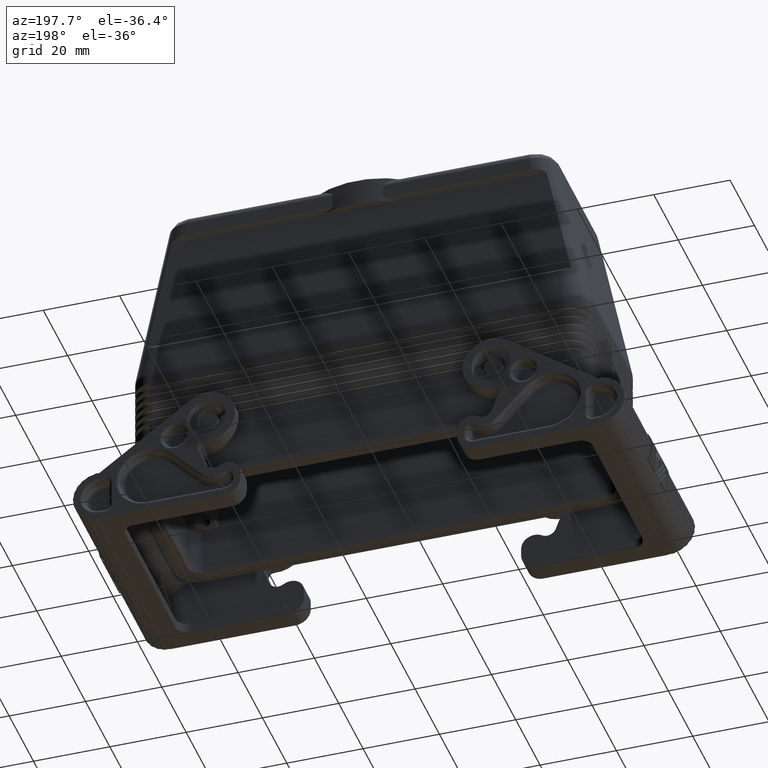
[diagram: clean part render]
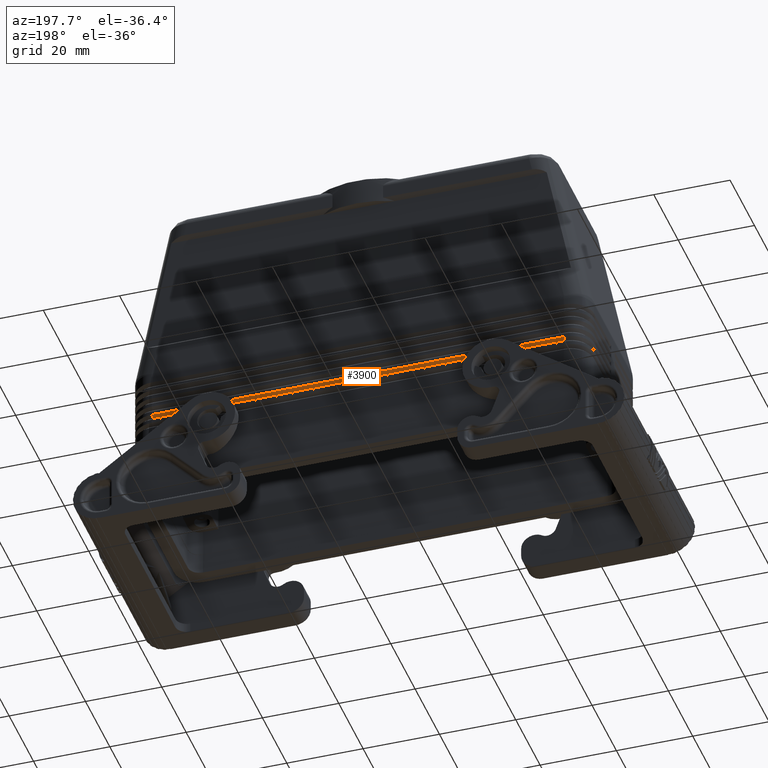
[diagram: same view with one face highlighted and labeled with its STEP entity id]
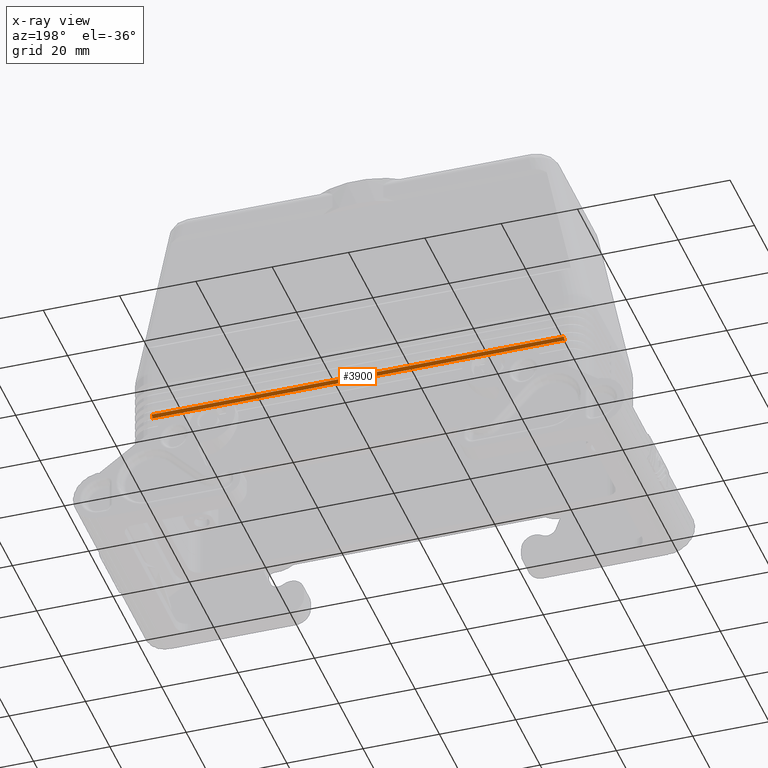
[diagram: x-ray of the same camera — body ghosted, the highlighted face saturated]
A machine part, auxiliary view. The second image highlights one B-rep face of the part: STEP entity #3900.
The next image is the same camera in x-ray: the body ghosted, the highlighted face saturated — about 0% of this face is hidden behind the body in this view.
In plain terms, the highlighted planar face has unit normal (0, 0.7071, -0.7071).
Its self-contained STEP definition (entity closure, byte-faithful):
#120=CARTESIAN_POINT('',(54.,20.8,20.55));
#130=VERTEX_POINT('',#120);
#160=CARTESIAN_POINT('',(-54.,20.8,20.55));
#170=DIRECTION('',(1.,0.,0.));
#180=VECTOR('',#170,108.);
#190=LINE('',#160,#180);
#200=CARTESIAN_POINT('',(-54.,20.8,20.55));
#210=VERTEX_POINT('',#200);
#220=EDGE_CURVE('',#210,#130,#190,.T.);
#3460=CARTESIAN_POINT('',(54.,21.5,21.25));
#3470=VERTEX_POINT('',#3460);
#3500=CARTESIAN_POINT('',(54.,20.8,20.55));
#3510=DIRECTION('',(-1.435513E-14,0.707106781186558,0.707106781186537));
#3520=VECTOR('',#3510,0.989949493661181);
#3530=LINE('',#3500,#3520);
#3540=EDGE_CURVE('',#130,#3470,#3530,.T.);
#3670=CARTESIAN_POINT('',(8.187895E-15,21.15,20.9));
#3680=DIRECTION('',(5.485005E-33,0.707106781186548,-0.707106781186548));
#3690=DIRECTION('',(-1.,3.87848423034212E-33,-3.87848423034212E-33));
#3700=AXIS2_PLACEMENT_3D('',#3670,#3680,#3690);
#3710=PLANE('',#3700);
#3720=CARTESIAN_POINT('',(-54.,21.5,21.25));
#3730=DIRECTION('',(1.,0.,0.));
#3740=VECTOR('',#3730,108.);
#3750=LINE('',#3720,#3740);
#3760=CARTESIAN_POINT('',(-54.,21.5,21.25));
#3770=VERTEX_POINT('',#3760);
#3780=EDGE_CURVE('',#3770,#3470,#3750,.T.);
#3790=ORIENTED_EDGE('',*,*,#3780,.T.);
#3800=CARTESIAN_POINT('',(-54.,20.8,20.55));
#3810=DIRECTION('',(-7.177566E-15,0.707106781186548,0.707106781186548));
#3820=VECTOR('',#3810,0.989949493661165);
#3830=LINE('',#3800,#3820);
#3840=EDGE_CURVE('',#210,#3770,#3830,.T.);
#3850=ORIENTED_EDGE('',*,*,#3840,.T.);
#3860=ORIENTED_EDGE('',*,*,#220,.F.);
#3870=ORIENTED_EDGE('',*,*,#3540,.F.);
#3880=EDGE_LOOP('',(#3870,#3860,#3850,#3790));
#3890=FACE_OUTER_BOUND('',#3880,.T.);
#3900=ADVANCED_FACE('',(#3890),#3710,.T.);